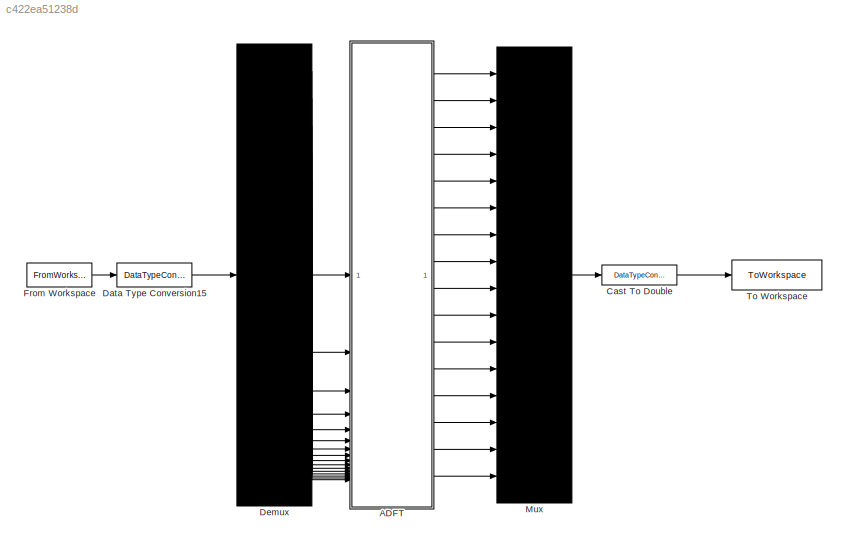
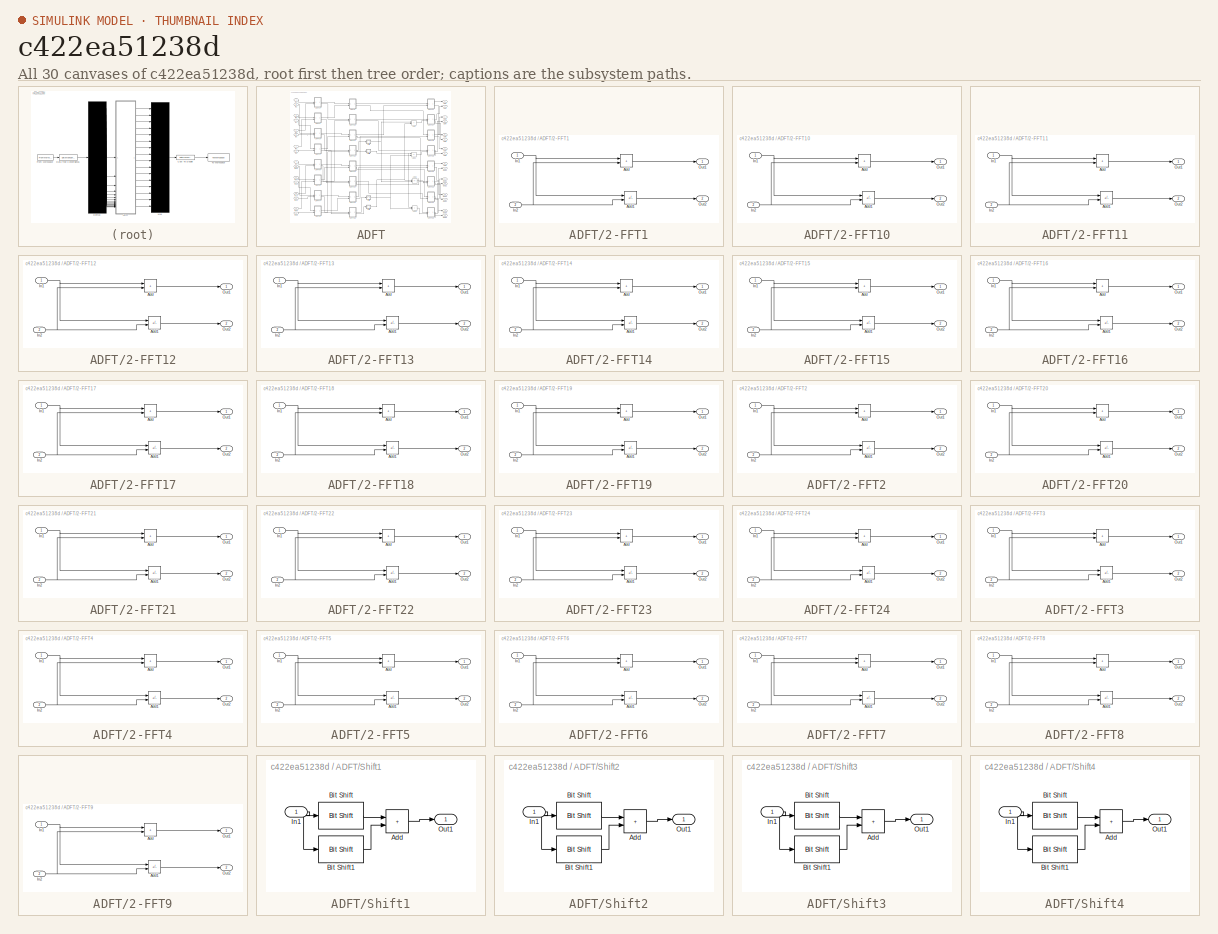
[diagram: thumbnail index - all 30 canvases of the model, root first then tree order]
MODEL slx_c422ea51238d
KIND model
CONFIG AbsTol = auto
CONFIG EnableMultiTasking = off
CONFIG FixedStep = auto
CONFIG MaxStep = auto
CONFIG MinStep = auto
CONFIG RelTol = 1e-3
CONFIG SampleTimeConstraint = Unconstrained
CONFIG SolverName = FixedStepDiscrete
CONFIG StartTime = 0.0
CONFIG StopTime = stop
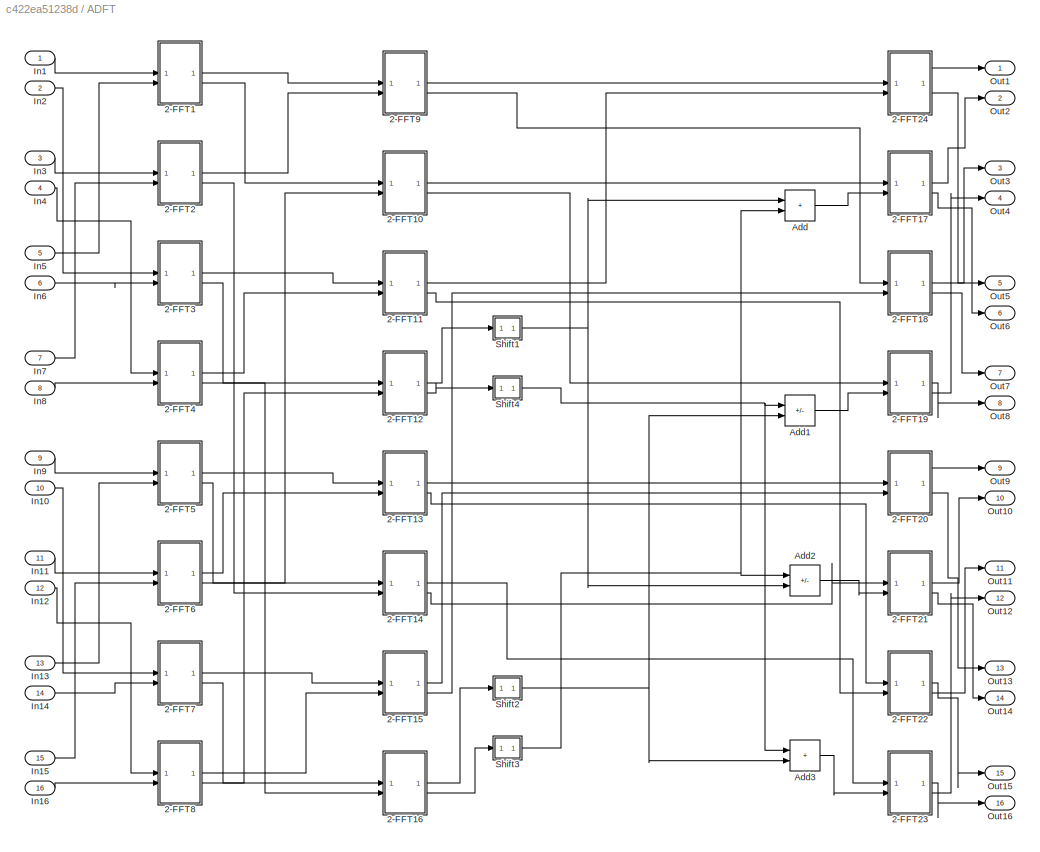
BLOCK [SubSystem] ADFT
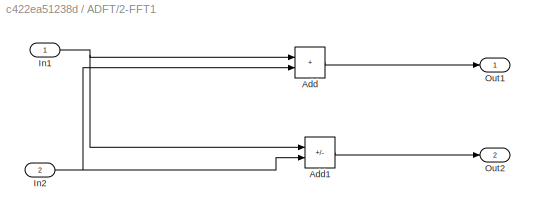
BLOCK [SubSystem] ADFT/2-FFT1
BLOCK [Sum] ADFT/2-FFT1/Add
  IconShape = rectangular
  OutDataTypeStr = fixdt(1,W,D)
BLOCK [Sum] ADFT/2-FFT1/Add1
  IconShape = rectangular
  Inputs = +-
  OutDataTypeStr = fixdt(1,W,D)
BLOCK [Inport] ADFT/2-FFT1/In1
BLOCK [Inport] ADFT/2-FFT1/In2
  Port = 2
BLOCK [Outport] ADFT/2-FFT1/Out1
BLOCK [Outport] ADFT/2-FFT1/Out2
  Port = 2
BLOCK [SubSystem] ADFT/2-FFT10
BLOCK [Sum] ADFT/2-FFT10/Add
  IconShape = rectangular
  OutDataTypeStr = fixdt(1,W,D)
BLOCK [Sum] ADFT/2-FFT10/Add1
  IconShape = rectangular
  Inputs = +-
  OutDataTypeStr = fixdt(1,W,D)
BLOCK [Inport] ADFT/2-FFT10/In1
BLOCK [Inport] ADFT/2-FFT10/In2
  Port = 2
BLOCK [Outport] ADFT/2-FFT10/Out1
BLOCK [Outport] ADFT/2-FFT10/Out2
  Port = 2
BLOCK [SubSystem] ADFT/2-FFT11
BLOCK [Sum] ADFT/2-FFT11/Add
  IconShape = rectangular
  OutDataTypeStr = fixdt(1,W,D)
BLOCK [Sum] ADFT/2-FFT11/Add1
  IconShape = rectangular
  Inputs = +-
  OutDataTypeStr = fixdt(1,W,D)
BLOCK [Inport] ADFT/2-FFT11/In1
BLOCK [Inport] ADFT/2-FFT11/In2
  Port = 2
BLOCK [Outport] ADFT/2-FFT11/Out1
BLOCK [Outport] ADFT/2-FFT11/Out2
  Port = 2
BLOCK [SubSystem] ADFT/2-FFT12
BLOCK [Sum] ADFT/2-FFT12/Add
  IconShape = rectangular
  OutDataTypeStr = fixdt(1,W,D)
BLOCK [Sum] ADFT/2-FFT12/Add1
  IconShape = rectangular
  Inputs = +-
  OutDataTypeStr = fixdt(1,W,D)
BLOCK [Inport] ADFT/2-FFT12/In1
BLOCK [Inport] ADFT/2-FFT12/In2
  Port = 2
BLOCK [Outport] ADFT/2-FFT12/Out1
BLOCK [Outport] ADFT/2-FFT12/Out2
  Port = 2
BLOCK [SubSystem] ADFT/2-FFT13
BLOCK [Sum] ADFT/2-FFT13/Add
  IconShape = rectangular
  OutDataTypeStr = fixdt(1,W,D)
BLOCK [Sum] ADFT/2-FFT13/Add1
  IconShape = rectangular
  Inputs = +-
  OutDataTypeStr = fixdt(1,W,D)
BLOCK [Inport] ADFT/2-FFT13/In1
BLOCK [Inport] ADFT/2-FFT13/In2
  Port = 2
BLOCK [Outport] ADFT/2-FFT13/Out1
BLOCK [Outport] ADFT/2-FFT13/Out2
  Port = 2
BLOCK [SubSystem] ADFT/2-FFT14
BLOCK [Sum] ADFT/2-FFT14/Add
  IconShape = rectangular
  OutDataTypeStr = fixdt(1,W,D)
BLOCK [Sum] ADFT/2-FFT14/Add1
  IconShape = rectangular
  Inputs = +-
  OutDataTypeStr = fixdt(1,W,D)
BLOCK [Inport] ADFT/2-FFT14/In1
BLOCK [Inport] ADFT/2-FFT14/In2
  Port = 2
BLOCK [Outport] ADFT/2-FFT14/Out1
BLOCK [Outport] ADFT/2-FFT14/Out2
  Port = 2
BLOCK [SubSystem] ADFT/2-FFT15
BLOCK [Sum] ADFT/2-FFT15/Add
  IconShape = rectangular
  OutDataTypeStr = fixdt(1,W,D)
BLOCK [Sum] ADFT/2-FFT15/Add1
  IconShape = rectangular
  Inputs = +-
  OutDataTypeStr = fixdt(1,W,D)
BLOCK [Inport] ADFT/2-FFT15/In1
BLOCK [Inport] ADFT/2-FFT15/In2
  Port = 2
BLOCK [Outport] ADFT/2-FFT15/Out1
BLOCK [Outport] ADFT/2-FFT15/Out2
  Port = 2
BLOCK [SubSystem] ADFT/2-FFT16
BLOCK [Sum] ADFT/2-FFT16/Add
  IconShape = rectangular
  OutDataTypeStr = fixdt(1,W,D)
BLOCK [Sum] ADFT/2-FFT16/Add1
  IconShape = rectangular
  Inputs = +-
  OutDataTypeStr = fixdt(1,W,D)
BLOCK [Inport] ADFT/2-FFT16/In1
BLOCK [Inport] ADFT/2-FFT16/In2
  Port = 2
BLOCK [Outport] ADFT/2-FFT16/Out1
BLOCK [Outport] ADFT/2-FFT16/Out2
  Port = 2
BLOCK [SubSystem] ADFT/2-FFT17
BLOCK [Sum] ADFT/2-FFT17/Add
  IconShape = rectangular
  OutDataTypeStr = fixdt(1,W,D)
BLOCK [Sum] ADFT/2-FFT17/Add1
  IconShape = rectangular
  Inputs = +-
  OutDataTypeStr = fixdt(1,W,D)
BLOCK [Inport] ADFT/2-FFT17/In1
BLOCK [Inport] ADFT/2-FFT17/In2
  Port = 2
BLOCK [Outport] ADFT/2-FFT17/Out1
BLOCK [Outport] ADFT/2-FFT17/Out2
  Port = 2
BLOCK [SubSystem] ADFT/2-FFT18
BLOCK [Sum] ADFT/2-FFT18/Add
  IconShape = rectangular
  OutDataTypeStr = fixdt(1,W,D)
BLOCK [Sum] ADFT/2-FFT18/Add1
  IconShape = rectangular
  Inputs = +-
  OutDataTypeStr = fixdt(1,W,D)
BLOCK [Inport] ADFT/2-FFT18/In1
BLOCK [Inport] ADFT/2-FFT18/In2
  Port = 2
BLOCK [Outport] ADFT/2-FFT18/Out1
BLOCK [Outport] ADFT/2-FFT18/Out2
  Port = 2
BLOCK [SubSystem] ADFT/2-FFT19
BLOCK [Sum] ADFT/2-FFT19/Add
  IconShape = rectangular
  OutDataTypeStr = fixdt(1,W,D)
BLOCK [Sum] ADFT/2-FFT19/Add1
  IconShape = rectangular
  Inputs = +-
  OutDataTypeStr = fixdt(1,W,D)
BLOCK [Inport] ADFT/2-FFT19/In1
BLOCK [Inport] ADFT/2-FFT19/In2
  Port = 2
BLOCK [Outport] ADFT/2-FFT19/Out1
BLOCK [Outport] ADFT/2-FFT19/Out2
  Port = 2
BLOCK [SubSystem] ADFT/2-FFT2
BLOCK [Sum] ADFT/2-FFT2/Add
  IconShape = rectangular
  OutDataTypeStr = fixdt(1,W,D)
BLOCK [Sum] ADFT/2-FFT2/Add1
  IconShape = rectangular
  Inputs = +-
  OutDataTypeStr = fixdt(1,W,D)
BLOCK [Inport] ADFT/2-FFT2/In1
BLOCK [Inport] ADFT/2-FFT2/In2
  Port = 2
BLOCK [Outport] ADFT/2-FFT2/Out1
BLOCK [Outport] ADFT/2-FFT2/Out2
  Port = 2
BLOCK [SubSystem] ADFT/2-FFT20
BLOCK [Sum] ADFT/2-FFT20/Add
  IconShape = rectangular
  OutDataTypeStr = fixdt(1,W,D)
BLOCK [Sum] ADFT/2-FFT20/Add1
  IconShape = rectangular
  Inputs = +-
  OutDataTypeStr = fixdt(1,W,D)
BLOCK [Inport] ADFT/2-FFT20/In1
BLOCK [Inport] ADFT/2-FFT20/In2
  Port = 2
BLOCK [Outport] ADFT/2-FFT20/Out1
BLOCK [Outport] ADFT/2-FFT20/Out2
  Port = 2
BLOCK [SubSystem] ADFT/2-FFT21
BLOCK [Sum] ADFT/2-FFT21/Add
  IconShape = rectangular
  OutDataTypeStr = fixdt(1,W,D)
BLOCK [Sum] ADFT/2-FFT21/Add1
  IconShape = rectangular
  Inputs = +-
  OutDataTypeStr = fixdt(1,W,D)
BLOCK [Inport] ADFT/2-FFT21/In1
BLOCK [Inport] ADFT/2-FFT21/In2
  Port = 2
BLOCK [Outport] ADFT/2-FFT21/Out1
BLOCK [Outport] ADFT/2-FFT21/Out2
  Port = 2
BLOCK [SubSystem] ADFT/2-FFT22
BLOCK [Sum] ADFT/2-FFT22/Add
  IconShape = rectangular
  OutDataTypeStr = fixdt(1,W,D)
BLOCK [Sum] ADFT/2-FFT22/Add1
  IconShape = rectangular
  Inputs = +-
  OutDataTypeStr = fixdt(1,W,D)
BLOCK [Inport] ADFT/2-FFT22/In1
BLOCK [Inport] ADFT/2-FFT22/In2
  Port = 2
BLOCK [Outport] ADFT/2-FFT22/Out1
BLOCK [Outport] ADFT/2-FFT22/Out2
  Port = 2
BLOCK [SubSystem] ADFT/2-FFT23
BLOCK [Sum] ADFT/2-FFT23/Add
  IconShape = rectangular
  OutDataTypeStr = fixdt(1,W,D)
BLOCK [Sum] ADFT/2-FFT23/Add1
  IconShape = rectangular
  Inputs = +-
  OutDataTypeStr = fixdt(1,W,D)
BLOCK [Inport] ADFT/2-FFT23/In1
BLOCK [Inport] ADFT/2-FFT23/In2
  Port = 2
BLOCK [Outport] ADFT/2-FFT23/Out1
BLOCK [Outport] ADFT/2-FFT23/Out2
  Port = 2
BLOCK [SubSystem] ADFT/2-FFT24
BLOCK [Sum] ADFT/2-FFT24/Add
  IconShape = rectangular
  OutDataTypeStr = fixdt(1,W,D)
BLOCK [Sum] ADFT/2-FFT24/Add1
  IconShape = rectangular
  Inputs = +-
  OutDataTypeStr = fixdt(1,W,D)
BLOCK [Inport] ADFT/2-FFT24/In1
BLOCK [Inport] ADFT/2-FFT24/In2
  Port = 2
BLOCK [Outport] ADFT/2-FFT24/Out1
BLOCK [Outport] ADFT/2-FFT24/Out2
  Port = 2
BLOCK [SubSystem] ADFT/2-FFT3
BLOCK [Sum] ADFT/2-FFT3/Add
  IconShape = rectangular
  OutDataTypeStr = fixdt(1,W,D)
BLOCK [Sum] ADFT/2-FFT3/Add1
  IconShape = rectangular
  Inputs = +-
  OutDataTypeStr = fixdt(1,W,D)
BLOCK [Inport] ADFT/2-FFT3/In1
BLOCK [Inport] ADFT/2-FFT3/In2
  Port = 2
BLOCK [Outport] ADFT/2-FFT3/Out1
BLOCK [Outport] ADFT/2-FFT3/Out2
  Port = 2
BLOCK [SubSystem] ADFT/2-FFT4
BLOCK [Sum] ADFT/2-FFT4/Add
  IconShape = rectangular
  OutDataTypeStr = fixdt(1,W,D)
BLOCK [Sum] ADFT/2-FFT4/Add1
  IconShape = rectangular
  Inputs = +-
  OutDataTypeStr = fixdt(1,W,D)
BLOCK [Inport] ADFT/2-FFT4/In1
BLOCK [Inport] ADFT/2-FFT4/In2
  Port = 2
BLOCK [Outport] ADFT/2-FFT4/Out1
BLOCK [Outport] ADFT/2-FFT4/Out2
  Port = 2
BLOCK [SubSystem] ADFT/2-FFT5
BLOCK [Sum] ADFT/2-FFT5/Add
  IconShape = rectangular
  OutDataTypeStr = fixdt(1,W,D)
BLOCK [Sum] ADFT/2-FFT5/Add1
  IconShape = rectangular
  Inputs = +-
  OutDataTypeStr = fixdt(1,W,D)
BLOCK [Inport] ADFT/2-FFT5/In1
BLOCK [Inport] ADFT/2-FFT5/In2
  Port = 2
BLOCK [Outport] ADFT/2-FFT5/Out1
BLOCK [Outport] ADFT/2-FFT5/Out2
  Port = 2
BLOCK [SubSystem] ADFT/2-FFT6
BLOCK [Sum] ADFT/2-FFT6/Add
  IconShape = rectangular
  OutDataTypeStr = fixdt(1,W,D)
BLOCK [Sum] ADFT/2-FFT6/Add1
  IconShape = rectangular
  Inputs = +-
  OutDataTypeStr = fixdt(1,W,D)
BLOCK [Inport] ADFT/2-FFT6/In1
BLOCK [Inport] ADFT/2-FFT6/In2
  Port = 2
BLOCK [Outport] ADFT/2-FFT6/Out1
BLOCK [Outport] ADFT/2-FFT6/Out2
  Port = 2
BLOCK [SubSystem] ADFT/2-FFT7
BLOCK [Sum] ADFT/2-FFT7/Add
  IconShape = rectangular
  OutDataTypeStr = fixdt(1,W,D)
BLOCK [Sum] ADFT/2-FFT7/Add1
  IconShape = rectangular
  Inputs = +-
  OutDataTypeStr = fixdt(1,W,D)
BLOCK [Inport] ADFT/2-FFT7/In1
BLOCK [Inport] ADFT/2-FFT7/In2
  Port = 2
BLOCK [Outport] ADFT/2-FFT7/Out1
BLOCK [Outport] ADFT/2-FFT7/Out2
  Port = 2
BLOCK [SubSystem] ADFT/2-FFT8
BLOCK [Sum] ADFT/2-FFT8/Add
  IconShape = rectangular
  OutDataTypeStr = fixdt(1,W,D)
BLOCK [Sum] ADFT/2-FFT8/Add1
  IconShape = rectangular
  Inputs = +-
  OutDataTypeStr = fixdt(1,W,D)
BLOCK [Inport] ADFT/2-FFT8/In1
BLOCK [Inport] ADFT/2-FFT8/In2
  Port = 2
BLOCK [Outport] ADFT/2-FFT8/Out1
BLOCK [Outport] ADFT/2-FFT8/Out2
  Port = 2
BLOCK [SubSystem] ADFT/2-FFT9
BLOCK [Sum] ADFT/2-FFT9/Add
  IconShape = rectangular
  OutDataTypeStr = fixdt(1,W,D)
BLOCK [Sum] ADFT/2-FFT9/Add1
  IconShape = rectangular
  Inputs = +-
  OutDataTypeStr = fixdt(1,W,D)
BLOCK [Inport] ADFT/2-FFT9/In1
BLOCK [Inport] ADFT/2-FFT9/In2
  Port = 2
BLOCK [Outport] ADFT/2-FFT9/Out1
BLOCK [Outport] ADFT/2-FFT9/Out2
  Port = 2
BLOCK [Sum] ADFT/Add
  IconShape = rectangular
  OutDataTypeStr = fixdt(1,W,D)
BLOCK [Sum] ADFT/Add1
  IconShape = rectangular
  Inputs = +-
  OutDataTypeStr = fixdt(1,W,D)
BLOCK [Sum] ADFT/Add2
  IconShape = rectangular
  Inputs = +-
  OutDataTypeStr = fixdt(1,W,D)
BLOCK [Sum] ADFT/Add3
  IconShape = rectangular
  OutDataTypeStr = fixdt(1,W,D)
BLOCK [Inport] ADFT/In1
BLOCK [Inport] ADFT/In10
  Port = 10
BLOCK [Inport] ADFT/In11
  Port = 11
BLOCK [Inport] ADFT/In12
  Port = 12
BLOCK [Inport] ADFT/In13
  Port = 13
BLOCK [Inport] ADFT/In14
  Port = 14
BLOCK [Inport] ADFT/In15
  Port = 15
BLOCK [Inport] ADFT/In16
  Port = 16
BLOCK [Inport] ADFT/In2
  Port = 2
BLOCK [Inport] ADFT/In3
  Port = 3
BLOCK [Inport] ADFT/In4
  Port = 4
BLOCK [Inport] ADFT/In5
  Port = 5
BLOCK [Inport] ADFT/In6
  Port = 6
BLOCK [Inport] ADFT/In7
  Port = 7
BLOCK [Inport] ADFT/In8
  Port = 8
BLOCK [Inport] ADFT/In9
  Port = 9
BLOCK [Outport] ADFT/Out1
BLOCK [Outport] ADFT/Out10
  Port = 10
BLOCK [Outport] ADFT/Out11
  Port = 11
BLOCK [Outport] ADFT/Out12
  Port = 12
BLOCK [Outport] ADFT/Out13
  Port = 13
BLOCK [Outport] ADFT/Out14
  Port = 14
BLOCK [Outport] ADFT/Out15
  Port = 15
BLOCK [Outport] ADFT/Out16
  Port = 16
BLOCK [Outport] ADFT/Out2
  Port = 2
BLOCK [Outport] ADFT/Out3
  Port = 3
BLOCK [Outport] ADFT/Out4
  Port = 4
BLOCK [Outport] ADFT/Out5
  Port = 5
BLOCK [Outport] ADFT/Out6
  Port = 6
BLOCK [Outport] ADFT/Out7
  Port = 7
BLOCK [Outport] ADFT/Out8
  Port = 8
BLOCK [Outport] ADFT/Out9
  Port = 9
BLOCK [SubSystem] ADFT/Shift1
BLOCK [Sum] ADFT/Shift1/Add
  IconShape = rectangular
  OutDataTypeStr = fixdt(1,W,D)
BLOCK [Reference] ADFT/Shift1/Bit Shift  REF=hdlsllib/Logic and Bit
Operations/Bit Shift
  SourceBlock = hdlsllib/Logic and Bit\nOperations/Bit Shift
  SourceType = Bit Shift
BLOCK [Reference] ADFT/Shift1/Bit Shift1  REF=hdlsllib/Logic and Bit
Operations/Bit Shift
  SourceBlock = hdlsllib/Logic and Bit\nOperations/Bit Shift
  SourceType = Bit Shift
BLOCK [Inport] ADFT/Shift1/In1
BLOCK [Outport] ADFT/Shift1/Out1
BLOCK [SubSystem] ADFT/Shift2
BLOCK [Sum] ADFT/Shift2/Add
  IconShape = rectangular
  OutDataTypeStr = fixdt(1,W,D)
BLOCK [Reference] ADFT/Shift2/Bit Shift  REF=hdlsllib/Logic and Bit
Operations/Bit Shift
  SourceBlock = hdlsllib/Logic and Bit\nOperations/Bit Shift
  SourceType = Bit Shift
BLOCK [Reference] ADFT/Shift2/Bit Shift1  REF=hdlsllib/Logic and Bit
Operations/Bit Shift
  SourceBlock = hdlsllib/Logic and Bit\nOperations/Bit Shift
  SourceType = Bit Shift
BLOCK [Inport] ADFT/Shift2/In1
BLOCK [Outport] ADFT/Shift2/Out1
BLOCK [SubSystem] ADFT/Shift3
BLOCK [Sum] ADFT/Shift3/Add
  IconShape = rectangular
  OutDataTypeStr = fixdt(1,W,D)
BLOCK [Reference] ADFT/Shift3/Bit Shift  REF=hdlsllib/Logic and Bit
Operations/Bit Shift
  SourceBlock = hdlsllib/Logic and Bit\nOperations/Bit Shift
  SourceType = Bit Shift
BLOCK [Reference] ADFT/Shift3/Bit Shift1  REF=hdlsllib/Logic and Bit
Operations/Bit Shift
  SourceBlock = hdlsllib/Logic and Bit\nOperations/Bit Shift
  SourceType = Bit Shift
BLOCK [Inport] ADFT/Shift3/In1
BLOCK [Outport] ADFT/Shift3/Out1
BLOCK [SubSystem] ADFT/Shift4
BLOCK [Sum] ADFT/Shift4/Add
  IconShape = rectangular
  OutDataTypeStr = fixdt(1,W,D)
BLOCK [Reference] ADFT/Shift4/Bit Shift  REF=hdlsllib/Logic and Bit
Operations/Bit Shift
  SourceBlock = hdlsllib/Logic and Bit\nOperations/Bit Shift
  SourceType = Bit Shift
BLOCK [Reference] ADFT/Shift4/Bit Shift1  REF=hdlsllib/Logic and Bit
Operations/Bit Shift
  SourceBlock = hdlsllib/Logic and Bit\nOperations/Bit Shift
  SourceType = Bit Shift
BLOCK [Inport] ADFT/Shift4/In1
BLOCK [Outport] ADFT/Shift4/Out1
BLOCK [DataTypeConversion] Cast To Double
  OutDataTypeStr = double
  RndMeth = Floor
  SaturateOnIntegerOverflow = off
BLOCK [DataTypeConversion] Data Type Conversion15
  OutDataTypeStr = fixdt(1,16,11)
  RndMeth = Nearest
BLOCK [Demux] Demux
  Outputs = 16
BLOCK [FromWorkspace] From Workspace
  OutputAfterFinalValue = Holding final value
  SampleTime = Ts
  VariableName = simin
BLOCK [Mux] Mux
  DisplayOption = bar
  Inputs = 16
BLOCK [ToWorkspace] To Workspace
  FixptAsFi = on
  MaxDataPoints = inf
  SampleTime = -1
  VariableName = simout
LINE ADFT/2-FFT1/Add1:1 -> ADFT/2-FFT1/Out2:1
LINE ADFT/2-FFT1/Add:1 -> ADFT/2-FFT1/Out1:1
NET ADFT/2-FFT1/In1:1 -> ADFT/2-FFT1/Add1:1, ADFT/2-FFT1/Add:1
NET ADFT/2-FFT1/In2:1 -> ADFT/2-FFT1/Add1:2, ADFT/2-FFT1/Add:2
LINE ADFT/2-FFT10/Add1:1 -> ADFT/2-FFT10/Out2:1
LINE ADFT/2-FFT10/Add:1 -> ADFT/2-FFT10/Out1:1
NET ADFT/2-FFT10/In1:1 -> ADFT/2-FFT10/Add1:1, ADFT/2-FFT10/Add:1
NET ADFT/2-FFT10/In2:1 -> ADFT/2-FFT10/Add1:2, ADFT/2-FFT10/Add:2
LINE ADFT/2-FFT10:1 -> ADFT/2-FFT17:1
LINE ADFT/2-FFT10:2 -> ADFT/2-FFT19:1
LINE ADFT/2-FFT11/Add1:1 -> ADFT/2-FFT11/Out2:1
LINE ADFT/2-FFT11/Add:1 -> ADFT/2-FFT11/Out1:1
NET ADFT/2-FFT11/In1:1 -> ADFT/2-FFT11/Add1:1, ADFT/2-FFT11/Add:1
NET ADFT/2-FFT11/In2:1 -> ADFT/2-FFT11/Add1:2, ADFT/2-FFT11/Add:2
LINE ADFT/2-FFT11:1 -> ADFT/2-FFT24:2
LINE ADFT/2-FFT11:2 -> ADFT/2-FFT22:2
LINE ADFT/2-FFT12/Add1:1 -> ADFT/2-FFT12/Out2:1
LINE ADFT/2-FFT12/Add:1 -> ADFT/2-FFT12/Out1:1
NET ADFT/2-FFT12/In1:1 -> ADFT/2-FFT12/Add1:1, ADFT/2-FFT12/Add:1
NET ADFT/2-FFT12/In2:1 -> ADFT/2-FFT12/Add1:2, ADFT/2-FFT12/Add:2
LINE ADFT/2-FFT12:1 -> ADFT/Shift1:1
LINE ADFT/2-FFT12:2 -> ADFT/Shift4:1
LINE ADFT/2-FFT13/Add1:1 -> ADFT/2-FFT13/Out2:1
LINE ADFT/2-FFT13/Add:1 -> ADFT/2-FFT13/Out1:1
NET ADFT/2-FFT13/In1:1 -> ADFT/2-FFT13/Add1:1, ADFT/2-FFT13/Add:1
NET ADFT/2-FFT13/In2:1 -> ADFT/2-FFT13/Add1:2, ADFT/2-FFT13/Add:2
LINE ADFT/2-FFT13:1 -> ADFT/2-FFT20:1
LINE ADFT/2-FFT13:2 -> ADFT/2-FFT22:1
LINE ADFT/2-FFT14/Add1:1 -> ADFT/2-FFT14/Out2:1
LINE ADFT/2-FFT14/Add:1 -> ADFT/2-FFT14/Out1:1
NET ADFT/2-FFT14/In1:1 -> ADFT/2-FFT14/Add1:1, ADFT/2-FFT14/Add:1
NET ADFT/2-FFT14/In2:1 -> ADFT/2-FFT14/Add1:2, ADFT/2-FFT14/Add:2
LINE ADFT/2-FFT14:1 -> ADFT/2-FFT23:1
LINE ADFT/2-FFT14:2 -> ADFT/2-FFT21:1
LINE ADFT/2-FFT15/Add1:1 -> ADFT/2-FFT15/Out2:1
LINE ADFT/2-FFT15/Add:1 -> ADFT/2-FFT15/Out1:1
NET ADFT/2-FFT15/In1:1 -> ADFT/2-FFT15/Add1:1, ADFT/2-FFT15/Add:1
NET ADFT/2-FFT15/In2:1 -> ADFT/2-FFT15/Add1:2, ADFT/2-FFT15/Add:2
LINE ADFT/2-FFT15:1 -> ADFT/2-FFT20:2
LINE ADFT/2-FFT15:2 -> ADFT/2-FFT18:2
LINE ADFT/2-FFT16/Add1:1 -> ADFT/2-FFT16/Out2:1
LINE ADFT/2-FFT16/Add:1 -> ADFT/2-FFT16/Out1:1
NET ADFT/2-FFT16/In1:1 -> ADFT/2-FFT16/Add1:1, ADFT/2-FFT16/Add:1
NET ADFT/2-FFT16/In2:1 -> ADFT/2-FFT16/Add1:2, ADFT/2-FFT16/Add:2
LINE ADFT/2-FFT16:1 -> ADFT/Shift2:1
LINE ADFT/2-FFT16:2 -> ADFT/Shift3:1
LINE ADFT/2-FFT17/Add1:1 -> ADFT/2-FFT17/Out2:1
LINE ADFT/2-FFT17/Add:1 -> ADFT/2-FFT17/Out1:1
NET ADFT/2-FFT17/In1:1 -> ADFT/2-FFT17/Add1:1, ADFT/2-FFT17/Add:1
NET ADFT/2-FFT17/In2:1 -> ADFT/2-FFT17/Add1:2, ADFT/2-FFT17/Add:2
LINE ADFT/2-FFT17:1 -> ADFT/Out2:1
LINE ADFT/2-FFT17:2 -> ADFT/Out6:1
LINE ADFT/2-FFT18/Add1:1 -> ADFT/2-FFT18/Out2:1
LINE ADFT/2-FFT18/Add:1 -> ADFT/2-FFT18/Out1:1
NET ADFT/2-FFT18/In1:1 -> ADFT/2-FFT18/Add1:1, ADFT/2-FFT18/Add:1
NET ADFT/2-FFT18/In2:1 -> ADFT/2-FFT18/Add1:2, ADFT/2-FFT18/Add:2
LINE ADFT/2-FFT18:1 -> ADFT/Out3:1
LINE ADFT/2-FFT18:2 -> ADFT/Out7:1
LINE ADFT/2-FFT19/Add1:1 -> ADFT/2-FFT19/Out2:1
LINE ADFT/2-FFT19/Add:1 -> ADFT/2-FFT19/Out1:1
NET ADFT/2-FFT19/In1:1 -> ADFT/2-FFT19/Add1:1, ADFT/2-FFT19/Add:1
NET ADFT/2-FFT19/In2:1 -> ADFT/2-FFT19/Add1:2, ADFT/2-FFT19/Add:2
LINE ADFT/2-FFT19:1 -> ADFT/Out8:1
LINE ADFT/2-FFT19:2 -> ADFT/Out4:1
LINE ADFT/2-FFT1:1 -> ADFT/2-FFT9:1
LINE ADFT/2-FFT1:2 -> ADFT/2-FFT10:1
LINE ADFT/2-FFT2/Add1:1 -> ADFT/2-FFT2/Out2:1
LINE ADFT/2-FFT2/Add:1 -> ADFT/2-FFT2/Out1:1
NET ADFT/2-FFT2/In1:1 -> ADFT/2-FFT2/Add1:1, ADFT/2-FFT2/Add:1
NET ADFT/2-FFT2/In2:1 -> ADFT/2-FFT2/Add1:2, ADFT/2-FFT2/Add:2
LINE ADFT/2-FFT20/Add1:1 -> ADFT/2-FFT20/Out2:1
LINE ADFT/2-FFT20/Add:1 -> ADFT/2-FFT20/Out1:1
NET ADFT/2-FFT20/In1:1 -> ADFT/2-FFT20/Add1:1, ADFT/2-FFT20/Add:1
NET ADFT/2-FFT20/In2:1 -> ADFT/2-FFT20/Add1:2, ADFT/2-FFT20/Add:2
LINE ADFT/2-FFT20:1 -> ADFT/Out9:1
LINE ADFT/2-FFT20:2 -> ADFT/Out13:1
LINE ADFT/2-FFT21/Add1:1 -> ADFT/2-FFT21/Out2:1
LINE ADFT/2-FFT21/Add:1 -> ADFT/2-FFT21/Out1:1
NET ADFT/2-FFT21/In1:1 -> ADFT/2-FFT21/Add1:1, ADFT/2-FFT21/Add:1
NET ADFT/2-FFT21/In2:1 -> ADFT/2-FFT21/Add1:2, ADFT/2-FFT21/Add:2
LINE ADFT/2-FFT21:1 -> ADFT/Out10:1
LINE ADFT/2-FFT21:2 -> ADFT/Out14:1
LINE ADFT/2-FFT22/Add1:1 -> ADFT/2-FFT22/Out2:1
LINE ADFT/2-FFT22/Add:1 -> ADFT/2-FFT22/Out1:1
NET ADFT/2-FFT22/In1:1 -> ADFT/2-FFT22/Add1:1, ADFT/2-FFT22/Add:1
NET ADFT/2-FFT22/In2:1 -> ADFT/2-FFT22/Add1:2, ADFT/2-FFT22/Add:2
LINE ADFT/2-FFT22:1 -> ADFT/Out15:1
LINE ADFT/2-FFT22:2 -> ADFT/Out11:1
LINE ADFT/2-FFT23/Add1:1 -> ADFT/2-FFT23/Out2:1
LINE ADFT/2-FFT23/Add:1 -> ADFT/2-FFT23/Out1:1
NET ADFT/2-FFT23/In1:1 -> ADFT/2-FFT23/Add1:1, ADFT/2-FFT23/Add:1
NET ADFT/2-FFT23/In2:1 -> ADFT/2-FFT23/Add1:2, ADFT/2-FFT23/Add:2
LINE ADFT/2-FFT23:1 -> ADFT/Out16:1
LINE ADFT/2-FFT23:2 -> ADFT/Out12:1
LINE ADFT/2-FFT24/Add1:1 -> ADFT/2-FFT24/Out2:1
LINE ADFT/2-FFT24/Add:1 -> ADFT/2-FFT24/Out1:1
NET ADFT/2-FFT24/In1:1 -> ADFT/2-FFT24/Add1:1, ADFT/2-FFT24/Add:1
NET ADFT/2-FFT24/In2:1 -> ADFT/2-FFT24/Add1:2, ADFT/2-FFT24/Add:2
LINE ADFT/2-FFT24:1 -> ADFT/Out1:1
LINE ADFT/2-FFT24:2 -> ADFT/Out5:1
LINE ADFT/2-FFT2:1 -> ADFT/2-FFT9:2
LINE ADFT/2-FFT2:2 -> ADFT/2-FFT14:2
LINE ADFT/2-FFT3/Add1:1 -> ADFT/2-FFT3/Out2:1
LINE ADFT/2-FFT3/Add:1 -> ADFT/2-FFT3/Out1:1
NET ADFT/2-FFT3/In1:1 -> ADFT/2-FFT3/Add1:1, ADFT/2-FFT3/Add:1
NET ADFT/2-FFT3/In2:1 -> ADFT/2-FFT3/Add1:2, ADFT/2-FFT3/Add:2
LINE ADFT/2-FFT3:1 -> ADFT/2-FFT11:1
LINE ADFT/2-FFT3:2 -> ADFT/2-FFT12:1
LINE ADFT/2-FFT4/Add1:1 -> ADFT/2-FFT4/Out2:1
LINE ADFT/2-FFT4/Add:1 -> ADFT/2-FFT4/Out1:1
NET ADFT/2-FFT4/In1:1 -> ADFT/2-FFT4/Add1:1, ADFT/2-FFT4/Add:1
NET ADFT/2-FFT4/In2:1 -> ADFT/2-FFT4/Add1:2, ADFT/2-FFT4/Add:2
LINE ADFT/2-FFT4:1 -> ADFT/2-FFT11:2
LINE ADFT/2-FFT4:2 -> ADFT/2-FFT16:2
LINE ADFT/2-FFT5/Add1:1 -> ADFT/2-FFT5/Out2:1
LINE ADFT/2-FFT5/Add:1 -> ADFT/2-FFT5/Out1:1
NET ADFT/2-FFT5/In1:1 -> ADFT/2-FFT5/Add1:1, ADFT/2-FFT5/Add:1
NET ADFT/2-FFT5/In2:1 -> ADFT/2-FFT5/Add1:2, ADFT/2-FFT5/Add:2
LINE ADFT/2-FFT5:1 -> ADFT/2-FFT13:1
LINE ADFT/2-FFT5:2 -> ADFT/2-FFT14:1
LINE ADFT/2-FFT6/Add1:1 -> ADFT/2-FFT6/Out2:1
LINE ADFT/2-FFT6/Add:1 -> ADFT/2-FFT6/Out1:1
NET ADFT/2-FFT6/In1:1 -> ADFT/2-FFT6/Add1:1, ADFT/2-FFT6/Add:1
NET ADFT/2-FFT6/In2:1 -> ADFT/2-FFT6/Add1:2, ADFT/2-FFT6/Add:2
LINE ADFT/2-FFT6:1 -> ADFT/2-FFT13:2
LINE ADFT/2-FFT6:2 -> ADFT/2-FFT10:2
LINE ADFT/2-FFT7/Add1:1 -> ADFT/2-FFT7/Out2:1
LINE ADFT/2-FFT7/Add:1 -> ADFT/2-FFT7/Out1:1
NET ADFT/2-FFT7/In1:1 -> ADFT/2-FFT7/Add1:1, ADFT/2-FFT7/Add:1
NET ADFT/2-FFT7/In2:1 -> ADFT/2-FFT7/Add1:2, ADFT/2-FFT7/Add:2
LINE ADFT/2-FFT7:1 -> ADFT/2-FFT15:1
LINE ADFT/2-FFT7:2 -> ADFT/2-FFT16:1
LINE ADFT/2-FFT8/Add1:1 -> ADFT/2-FFT8/Out2:1
LINE ADFT/2-FFT8/Add:1 -> ADFT/2-FFT8/Out1:1
NET ADFT/2-FFT8/In1:1 -> ADFT/2-FFT8/Add1:1, ADFT/2-FFT8/Add:1
NET ADFT/2-FFT8/In2:1 -> ADFT/2-FFT8/Add1:2, ADFT/2-FFT8/Add:2
LINE ADFT/2-FFT8:1 -> ADFT/2-FFT15:2
LINE ADFT/2-FFT8:2 -> ADFT/2-FFT12:2
LINE ADFT/2-FFT9/Add1:1 -> ADFT/2-FFT9/Out2:1
LINE ADFT/2-FFT9/Add:1 -> ADFT/2-FFT9/Out1:1
NET ADFT/2-FFT9/In1:1 -> ADFT/2-FFT9/Add1:1, ADFT/2-FFT9/Add:1
NET ADFT/2-FFT9/In2:1 -> ADFT/2-FFT9/Add1:2, ADFT/2-FFT9/Add:2
LINE ADFT/2-FFT9:1 -> ADFT/2-FFT24:1
LINE ADFT/2-FFT9:2 -> ADFT/2-FFT18:1
LINE ADFT/Add1:1 -> ADFT/2-FFT19:2
LINE ADFT/Add2:1 -> ADFT/2-FFT21:2
LINE ADFT/Add3:1 -> ADFT/2-FFT23:2
LINE ADFT/Add:1 -> ADFT/2-FFT17:2
LINE ADFT/In10:1 -> ADFT/2-FFT7:1
LINE ADFT/In11:1 -> ADFT/2-FFT6:1
LINE ADFT/In12:1 -> ADFT/2-FFT8:1
LINE ADFT/In13:1 -> ADFT/2-FFT5:2
LINE ADFT/In14:1 -> ADFT/2-FFT7:2
LINE ADFT/In15:1 -> ADFT/2-FFT6:2
LINE ADFT/In16:1 -> ADFT/2-FFT8:2
LINE ADFT/In1:1 -> ADFT/2-FFT1:1
LINE ADFT/In2:1 -> ADFT/2-FFT3:1
LINE ADFT/In3:1 -> ADFT/2-FFT2:1
LINE ADFT/In4:1 -> ADFT/2-FFT4:1
LINE ADFT/In5:1 -> ADFT/2-FFT1:2
LINE ADFT/In6:1 -> ADFT/2-FFT3:2
LINE ADFT/In7:1 -> ADFT/2-FFT2:2
LINE ADFT/In8:1 -> ADFT/2-FFT4:2
LINE ADFT/In9:1 -> ADFT/2-FFT5:1
LINE ADFT/Shift1/Add:1 -> ADFT/Shift1/Out1:1
LINE ADFT/Shift1/Bit Shift1:1 -> ADFT/Shift1/Add:2
LINE ADFT/Shift1/Bit Shift:1 -> ADFT/Shift1/Add:1
NET ADFT/Shift1/In1:1 -> ADFT/Shift1/Bit Shift1:1, ADFT/Shift1/Bit Shift:1
NET ADFT/Shift1:1 -> ADFT/Add2:2, ADFT/Add:1
LINE ADFT/Shift2/Add:1 -> ADFT/Shift2/Out1:1
LINE ADFT/Shift2/Bit Shift1:1 -> ADFT/Shift2/Add:2
LINE ADFT/Shift2/Bit Shift:1 -> ADFT/Shift2/Add:1
NET ADFT/Shift2/In1:1 -> ADFT/Shift2/Bit Shift1:1, ADFT/Shift2/Bit Shift:1
NET ADFT/Shift2:1 -> ADFT/Add1:2, ADFT/Add3:2
LINE ADFT/Shift3/Add:1 -> ADFT/Shift3/Out1:1
LINE ADFT/Shift3/Bit Shift1:1 -> ADFT/Shift3/Add:2
LINE ADFT/Shift3/Bit Shift:1 -> ADFT/Shift3/Add:1
NET ADFT/Shift3/In1:1 -> ADFT/Shift3/Bit Shift1:1, ADFT/Shift3/Bit Shift:1
NET ADFT/Shift3:1 -> ADFT/Add2:1, ADFT/Add:2
LINE ADFT/Shift4/Add:1 -> ADFT/Shift4/Out1:1
LINE ADFT/Shift4/Bit Shift1:1 -> ADFT/Shift4/Add:2
LINE ADFT/Shift4/Bit Shift:1 -> ADFT/Shift4/Add:1
NET ADFT/Shift4/In1:1 -> ADFT/Shift4/Bit Shift1:1, ADFT/Shift4/Bit Shift:1
NET ADFT/Shift4:1 -> ADFT/Add1:1, ADFT/Add3:1
LINE ADFT:1 -> Mux:1
LINE ADFT:10 -> Mux:10
LINE ADFT:11 -> Mux:11
LINE ADFT:12 -> Mux:12
LINE ADFT:13 -> Mux:13
LINE ADFT:14 -> Mux:14
LINE ADFT:15 -> Mux:15
LINE ADFT:16 -> Mux:16
LINE ADFT:2 -> Mux:2
LINE ADFT:3 -> Mux:3
LINE ADFT:4 -> Mux:4
LINE ADFT:5 -> Mux:5
LINE ADFT:6 -> Mux:6
LINE ADFT:7 -> Mux:7
LINE ADFT:8 -> Mux:8
LINE ADFT:9 -> Mux:9
LINE Cast To Double:1 -> To Workspace:1
LINE Data Type Conversion15:1 -> Demux:1
LINE Demux:1 -> ADFT:1
LINE Demux:10 -> ADFT:10
LINE Demux:11 -> ADFT:11
LINE Demux:12 -> ADFT:12
LINE Demux:13 -> ADFT:13
LINE Demux:14 -> ADFT:14
LINE Demux:15 -> ADFT:15
LINE Demux:16 -> ADFT:16
LINE Demux:2 -> ADFT:2
LINE Demux:3 -> ADFT:3
LINE Demux:4 -> ADFT:4
LINE Demux:5 -> ADFT:5
LINE Demux:6 -> ADFT:6
LINE Demux:7 -> ADFT:7
LINE Demux:8 -> ADFT:8
LINE Demux:9 -> ADFT:9
LINE From Workspace:1 -> Data Type Conversion15:1
LINE Mux:1 -> Cast To Double:1
note: NET lines group one-source signal fan-out (src -> all destinations, sorted); 1:1 wires keep LINE
